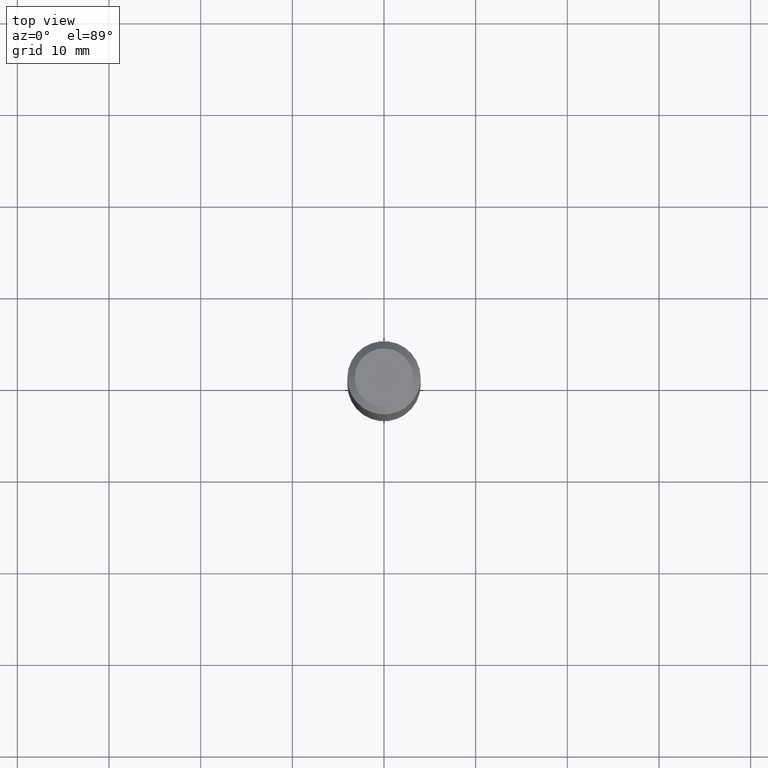
[diagram: clean part render]
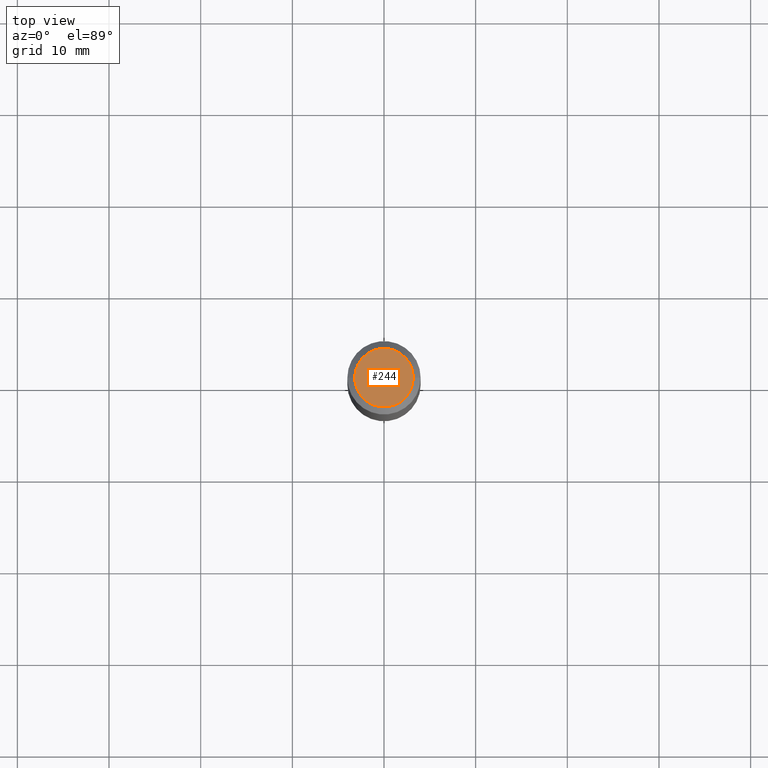
[diagram: same view with one face highlighted and labeled with its STEP entity id]
A machine part, top view. The second image highlights one B-rep face of the part: STEP entity #244.
In plain terms, the highlighted planar face has unit normal (0, -0, -1).
Its self-contained STEP definition (entity closure, byte-faithful):
#1 = CIRCLE ( 'NONE', #5, 0.1260000000000000009 ) ;
#5 = AXIS2_PLACEMENT_3D ( 'NONE', #270, #157, #198 ) ;
#24 = CARTESIAN_POINT ( 'NONE',  ( -9.439721640706201686E-47, 1.347742071746726764E-32, 3.860086710912459732E-18 ) ) ;
#28 = VERTEX_POINT ( 'NONE', #133 ) ;
#44 = DIRECTION ( 'NONE',  ( 1.000000000000000000, -6.982962677686265922E-15, 4.876281427513067258E-29 ) ) ;
#81 = VERTEX_POINT ( 'NONE', #380 ) ;
#85 = PLANE ( 'NONE',  #341 ) ;
#92 = ORIENTED_EDGE ( 'NONE', *, *, #409, .T. ) ;
#118 = EDGE_CURVE ( 'NONE', #81, #28, #1, .T. ) ;
#133 = CARTESIAN_POINT ( 'NONE',  ( -0.1260000000000000009, 9.348441284752484904E-16, 3.860086710906114178E-18 ) ) ;
#157 = DIRECTION ( 'NONE',  ( -2.445468806185136597E-29, 3.491481338843145583E-15, 1.000000000000000000 ) ) ;
#198 = DIRECTION ( 'NONE',  ( 1.000000000000000000, -6.982962677686265922E-15, 4.876281427513067258E-29 ) ) ;
#229 = ORIENTED_EDGE ( 'NONE', *, *, #118, .T. ) ;
#239 = DIRECTION ( 'NONE',  ( 2.438088387897960049E-29, -3.491481338843145188E-15, -1.000000000000000000 ) ) ;
#244 = ADVANCED_FACE ( 'NONE', ( #323 ), #85, .F. ) ;
#245 = EDGE_LOOP ( 'NONE', ( #92, #229 ) ) ;
#264 = DIRECTION ( 'NONE',  ( -2.445468806185136597E-29, 3.491481338843145583E-15, 1.000000000000000000 ) ) ;
#270 = CARTESIAN_POINT ( 'NONE',  ( -9.439721640706201686E-47, 1.347742071746726764E-32, 3.860086710912459732E-18 ) ) ;
#323 = FACE_OUTER_BOUND ( 'NONE', #245, .T. ) ;
#341 = AXIS2_PLACEMENT_3D ( 'NONE', #358, #239, #469 ) ;
#358 = CARTESIAN_POINT ( 'NONE',  ( -4.719860820353100843E-47, 6.738710358733633822E-33, 1.930043355456229866E-18 ) ) ;
#366 = CIRCLE ( 'NONE', #426, 0.1260000000000000009 ) ;
#380 = CARTESIAN_POINT ( 'NONE',  ( 0.1260000000000000009, -1.027466422270894443E-15, 3.860086710919128072E-18 ) ) ;
#409 = EDGE_CURVE ( 'NONE', #28, #81, #366, .T. ) ;
#426 = AXIS2_PLACEMENT_3D ( 'NONE', #24, #264, #44 ) ;
#469 = DIRECTION ( 'NONE',  ( -1.000000000000000000, 6.982962677686265922E-15, -4.876176775795935793E-29 ) ) ;